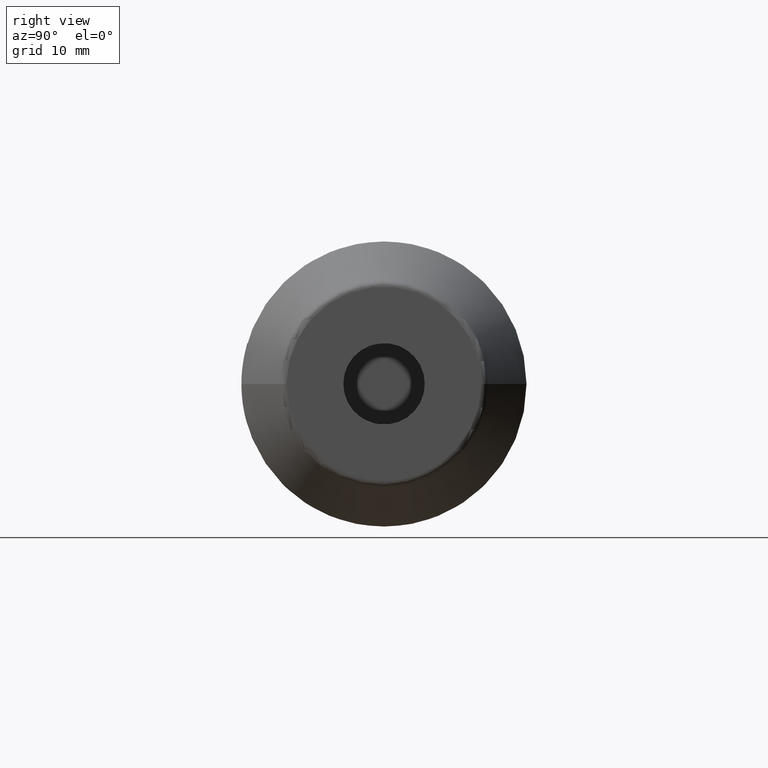
[diagram: clean part render]
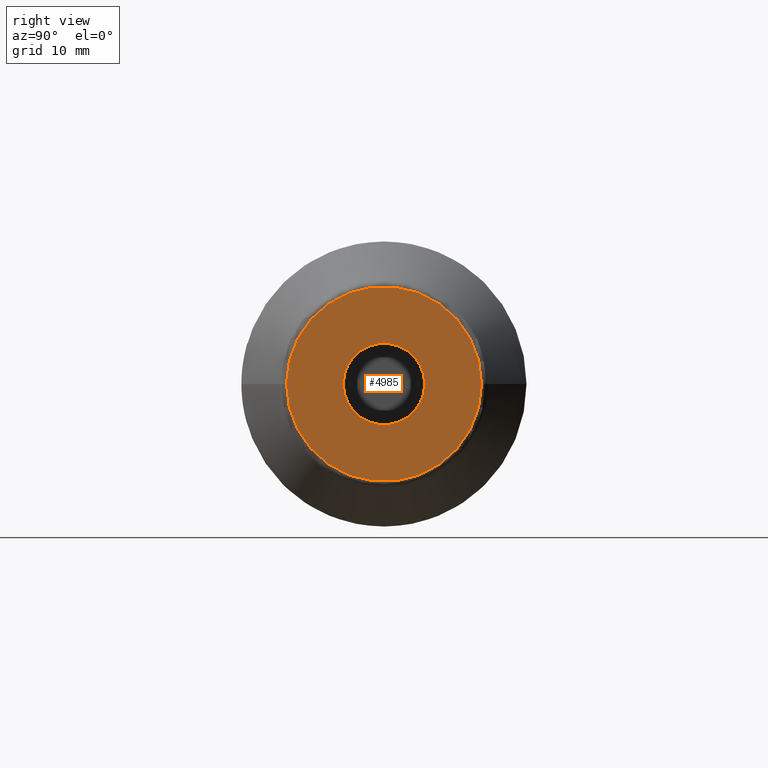
[diagram: same view with one face highlighted and labeled with its STEP entity id]
A machine part, right view. The second image highlights one B-rep face of the part: STEP entity #4985.
In plain terms, the highlighted planar face has unit normal (1, 0, 0).
Its self-contained STEP definition (entity closure, byte-faithful):
#1492=CARTESIAN_POINT('',(7.E1,0.E0,0.E0));
#1493=DIRECTION('',(1.E0,0.E0,0.E0));
#1494=DIRECTION('',(0.E0,1.E0,0.E0));
#1495=AXIS2_PLACEMENT_3D('',#1492,#1493,#1494);
#1497=CARTESIAN_POINT('',(7.E1,0.E0,0.E0));
#1498=DIRECTION('',(1.E0,0.E0,0.E0));
#1499=DIRECTION('',(0.E0,-1.E0,0.E0));
#1500=AXIS2_PLACEMENT_3D('',#1497,#1498,#1499);
#1502=CARTESIAN_POINT('',(7.E1,0.E0,0.E0));
#1503=DIRECTION('',(-1.E0,0.E0,0.E0));
#1504=DIRECTION('',(0.E0,1.E0,0.E0));
#1505=AXIS2_PLACEMENT_3D('',#1502,#1503,#1504);
#1507=CARTESIAN_POINT('',(7.E1,0.E0,0.E0));
#1508=DIRECTION('',(-1.E0,0.E0,0.E0));
#1509=DIRECTION('',(0.E0,-1.E0,0.E0));
#1510=AXIS2_PLACEMENT_3D('',#1507,#1508,#1509);
#3375=CARTESIAN_POINT('',(7.E1,6.E0,0.E0));
#3376=VERTEX_POINT('',#3375);
#3385=CARTESIAN_POINT('',(7.E1,-6.E0,0.E0));
#3386=VERTEX_POINT('',#3385);
#3391=CARTESIAN_POINT('',(7.E1,1.436292973919E1,-1.352841359022E-14));
#3392=CARTESIAN_POINT('',(7.E1,-1.436292973919E1,0.E0));
#3393=VERTEX_POINT('',#3391);
#3394=VERTEX_POINT('',#3392);
#4970=CARTESIAN_POINT('',(7.E1,0.E0,0.E0));
#4971=DIRECTION('',(1.E0,0.E0,0.E0));
#4972=DIRECTION('',(0.E0,-1.E0,0.E0));
#4973=AXIS2_PLACEMENT_3D('',#4970,#4971,#4972);
#4974=PLANE('',#4973);
#4975=ORIENTED_EDGE('',*,*,#4937,.T.);
#4976=ORIENTED_EDGE('',*,*,#4952,.T.);
#4977=EDGE_LOOP('',(#4975,#4976));
#4978=FACE_OUTER_BOUND('',#4977,.F.);
#4980=ORIENTED_EDGE('',*,*,#4979,.T.);
#4982=ORIENTED_EDGE('',*,*,#4981,.T.);
#4983=EDGE_LOOP('',(#4980,#4982));
#4984=FACE_BOUND('',#4983,.F.);
#4985=ADVANCED_FACE('',(#4978,#4984),#4974,.T.);
#1496=CIRCLE('',#1495,6.E0);
#1501=CIRCLE('',#1500,6.E0);
#1506=CIRCLE('',#1505,1.436292973919E1);
#1511=CIRCLE('',#1510,1.436292973919E1);
#4937=EDGE_CURVE('',#3393,#3394,#1506,.T.);
#4952=EDGE_CURVE('',#3394,#3393,#1511,.T.);
#4979=EDGE_CURVE('',#3376,#3386,#1496,.T.);
#4981=EDGE_CURVE('',#3386,#3376,#1501,.T.);